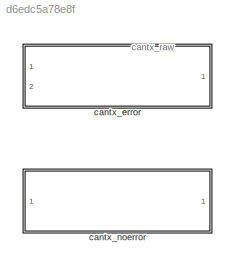
MODEL slx_d6edc5a78e8f
KIND model
CONFIG AbsTol = auto
CONFIG FixedStep = auto
CONFIG MaxStep = auto
CONFIG MinStep = auto
CONFIG RelTol = 1e-3
CONFIG SampleTimeConstraint = Unconstrained
CONFIG Solver = ode45
CONFIG SolverMode = SingleTasking
CONFIG SolverName = ode45
CONFIG StartTime = 0.0
CONFIG StopTime = 10.0
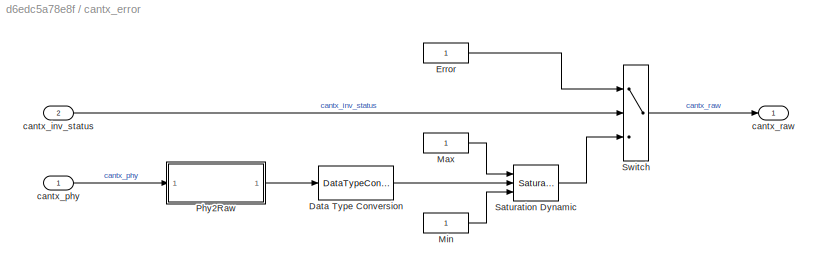
BLOCK [SubSystem] cantx_error
  Ports = [2, 1]
  RequestExecContextInheritance = off
BLOCK [DataTypeConversion] cantx_error/Data Type Conversion
  OutDataTypeStr = uint8
  RndMeth = Floor
  SaturateOnIntegerOverflow = off
BLOCK [Constant] cantx_error/Error
BLOCK [Constant] cantx_error/Max
BLOCK [Constant] cantx_error/Min
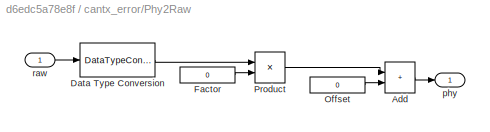
BLOCK [SubSystem] cantx_error/Phy2Raw
  Ports = [1, 1]
  RequestExecContextInheritance = off
BLOCK [Sum] cantx_error/Phy2Raw/Add
  IconShape = rectangular
  Ports = [2, 1]
BLOCK [DataTypeConversion] cantx_error/Phy2Raw/Data Type Conversion
  OutDataTypeStr = single
  RndMeth = Floor
  SaturateOnIntegerOverflow = off
BLOCK [Constant] cantx_error/Phy2Raw/Factor
  Value = 0
BLOCK [Constant] cantx_error/Phy2Raw/Offset
  Value = 0
BLOCK [Product] cantx_error/Phy2Raw/Product
  Ports = [2, 1]
BLOCK [Outport] cantx_error/Phy2Raw/phy
  IconDisplay = Port number and signal name
BLOCK [Inport] cantx_error/Phy2Raw/raw
BLOCK [Reference] cantx_error/Saturation Dynamic  REF=simulink/Discontinuities/Saturation
Dynamic
  DoSatur = off
  LockScale = off
  OutDataType = fixdt(1, 16)
  OutDataTypeStr = Inherit: Same as second input
  OutMax = []
  OutMin = []
  OutScaling = 2^-10
  OutputDataTypeScalingMode = Same as second input
  Ports = [3, 1]
  RTWMemSecDataConstants = Inherit from model
  RTWMemSecDataInternal = Inherit from model
  RTWMemSecDataParameters = Inherit from model
  RTWMemSecFuncExecute = Inherit from model
  RTWMemSecFuncInitTerm = Inherit from model
  RndMeth = Floor
  SourceBlock = simulink/Discontinuities/Saturation\nDynamic
  SourceType = Saturation Dynamic
BLOCK [Switch] cantx_error/Switch
  Criteria = u2 > Threshold
  InputSameDT = off
  SaturateOnIntegerOverflow = off
BLOCK [Inport] cantx_error/cantx_inv_status
  Port = 2
BLOCK [Inport] cantx_error/cantx_phy
BLOCK [Outport] cantx_error/cantx_raw
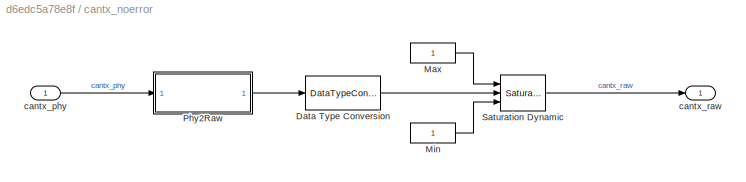
BLOCK [SubSystem] cantx_noerror
  Ports = [1, 1]
  RequestExecContextInheritance = off
BLOCK [DataTypeConversion] cantx_noerror/Data Type Conversion
  OutDataTypeStr = uint8
  RndMeth = Floor
  SaturateOnIntegerOverflow = off
BLOCK [Constant] cantx_noerror/Max
BLOCK [Constant] cantx_noerror/Min
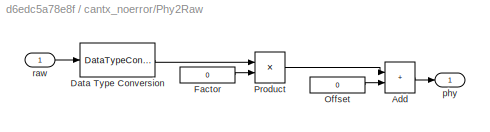
BLOCK [SubSystem] cantx_noerror/Phy2Raw
  Ports = [1, 1]
  RequestExecContextInheritance = off
BLOCK [Sum] cantx_noerror/Phy2Raw/Add
  IconShape = rectangular
  Ports = [2, 1]
BLOCK [DataTypeConversion] cantx_noerror/Phy2Raw/Data Type Conversion
  OutDataTypeStr = single
  RndMeth = Floor
  SaturateOnIntegerOverflow = off
BLOCK [Constant] cantx_noerror/Phy2Raw/Factor
  Value = 0
BLOCK [Constant] cantx_noerror/Phy2Raw/Offset
  Value = 0
BLOCK [Product] cantx_noerror/Phy2Raw/Product
  Ports = [2, 1]
BLOCK [Outport] cantx_noerror/Phy2Raw/phy
  IconDisplay = Port number and signal name
BLOCK [Inport] cantx_noerror/Phy2Raw/raw
BLOCK [Reference] cantx_noerror/Saturation Dynamic  REF=simulink/Discontinuities/Saturation
Dynamic
  DoSatur = off
  LockScale = off
  OutDataType = fixdt(1, 16)
  OutDataTypeStr = Inherit: Same as second input
  OutMax = []
  OutMin = []
  OutScaling = 2^-10
  OutputDataTypeScalingMode = Same as second input
  Ports = [3, 1]
  RTWMemSecDataConstants = Inherit from model
  RTWMemSecDataInternal = Inherit from model
  RTWMemSecDataParameters = Inherit from model
  RTWMemSecFuncExecute = Inherit from model
  RTWMemSecFuncInitTerm = Inherit from model
  RndMeth = Floor
  SourceBlock = simulink/Discontinuities/Saturation\nDynamic
  SourceType = Saturation Dynamic
BLOCK [Inport] cantx_noerror/cantx_phy
BLOCK [Outport] cantx_noerror/cantx_raw
ANNOTATION (root): cantx_raw
LINE cantx_error/Data Type Conversion:1 -> cantx_error/Saturation Dynamic:2
LINE cantx_error/Error:1 -> cantx_error/Switch:1
LINE cantx_error/Max:1 -> cantx_error/Saturation Dynamic:1
LINE cantx_error/Min:1 -> cantx_error/Saturation Dynamic:3
LINE cantx_error/Phy2Raw/Add:1 -> cantx_error/Phy2Raw/phy:1
LINE cantx_error/Phy2Raw/Data Type Conversion:1 -> cantx_error/Phy2Raw/Product:1
LINE cantx_error/Phy2Raw/Factor:1 -> cantx_error/Phy2Raw/Product:2
LINE cantx_error/Phy2Raw/Offset:1 -> cantx_error/Phy2Raw/Add:2
LINE cantx_error/Phy2Raw/Product:1 -> cantx_error/Phy2Raw/Add:1
LINE cantx_error/Phy2Raw/raw:1 -> cantx_error/Phy2Raw/Data Type Conversion:1
LINE cantx_error/Phy2Raw:1 -> cantx_error/Data Type Conversion:1
LINE cantx_error/Saturation Dynamic:1 -> cantx_error/Switch:3
LINE cantx_error/Switch:1 -> cantx_error/cantx_raw:1
LINE cantx_error/cantx_inv_status:1 -> cantx_error/Switch:2
LINE cantx_error/cantx_phy:1 -> cantx_error/Phy2Raw:1
LINE cantx_noerror/Data Type Conversion:1 -> cantx_noerror/Saturation Dynamic:2
LINE cantx_noerror/Max:1 -> cantx_noerror/Saturation Dynamic:1
LINE cantx_noerror/Min:1 -> cantx_noerror/Saturation Dynamic:3
LINE cantx_noerror/Phy2Raw/Add:1 -> cantx_noerror/Phy2Raw/phy:1
LINE cantx_noerror/Phy2Raw/Data Type Conversion:1 -> cantx_noerror/Phy2Raw/Product:1
LINE cantx_noerror/Phy2Raw/Factor:1 -> cantx_noerror/Phy2Raw/Product:2
LINE cantx_noerror/Phy2Raw/Offset:1 -> cantx_noerror/Phy2Raw/Add:2
LINE cantx_noerror/Phy2Raw/Product:1 -> cantx_noerror/Phy2Raw/Add:1
LINE cantx_noerror/Phy2Raw/raw:1 -> cantx_noerror/Phy2Raw/Data Type Conversion:1
LINE cantx_noerror/Phy2Raw:1 -> cantx_noerror/Data Type Conversion:1
LINE cantx_noerror/Saturation Dynamic:1 -> cantx_noerror/cantx_raw:1
LINE cantx_noerror/cantx_phy:1 -> cantx_noerror/Phy2Raw:1
